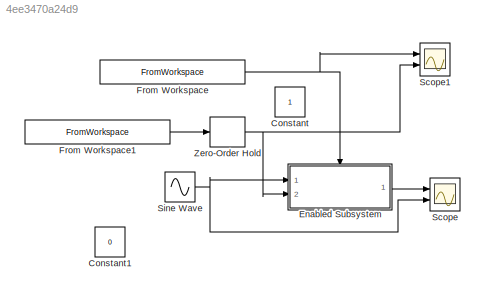
MODEL slx_4ee3470a24d9
KIND model
CONFIG AbsTol = auto
CONFIG EnableMultiTasking = off
CONFIG FixedStep = auto
CONFIG MaxStep = auto
CONFIG MinStep = auto
CONFIG RelTol = 1e-3
CONFIG SampleTimeConstraint = Unconstrained
CONFIG SolverName = VariableStepAuto
CONFIG StartTime = 0.0
CONFIG StopTime = 100
BLOCK [Constant] Constant
BLOCK [Constant] Constant1
  Value = 0
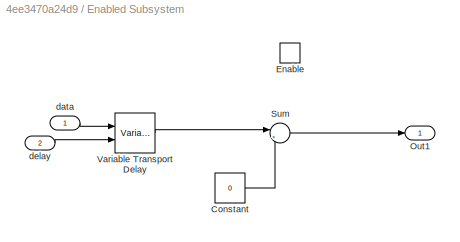
BLOCK [SubSystem] Enabled Subsystem
  Ports = [2, 1, 1]
  RequestExecContextInheritance = off
  TreatAsAtomicUnit = on
BLOCK [Constant] Enabled Subsystem/Constant
  Value = 0
BLOCK [EnablePort] Enabled Subsystem/Enable
  Ports = []
BLOCK [Outport] Enabled Subsystem/Out1
BLOCK [Sum] Enabled Subsystem/Sum
  Inputs = |++
  Ports = [2, 1]
BLOCK [VariableTransportDelay] Enabled Subsystem/Variable Transport Delay
  MaximumDelay = 10
  Ports = [2, 1]
BLOCK [Inport] Enabled Subsystem/data
BLOCK [Inport] Enabled Subsystem/delay
  Port = 2
BLOCK [FromWorkspace] From Workspace
  SampleTime = 1
  VariableName = networkSchedule(:,[1,2])
BLOCK [FromWorkspace] From Workspace1
  SampleTime = 1
  VariableName = networkSchedule(:,[1,3])
BLOCK [Scope] Scope
  Floating = off
  NumInputPorts = 2
  Ports = [2]
  ScopeSpecificationString = Simulink.scopes.TimeScopeBlockCfg('CurrentConfiguration', extmgr.ConfigurationSet(extmgr.Configuration('Core','General UI',true),extmgr.Configuration('Core','Source UI',true),extmgr.Configuration('Sources','WiredSimulink',true),extmgr.Configuration('Visuals','Time Domain',true,'SerializedDisplays',{struct('MinYLimReal','-1.25','MaxYLimReal','1.25','YLabelReal','','MinYLimMag','0.00000','MaxYLimMag...<+1821ch>
BLOCK [Scope] Scope1
  Floating = off
  NumInputPorts = 2
  Ports = [2]
  ScopeSpecificationString = Simulink.scopes.TimeScopeBlockCfg('CurrentConfiguration', extmgr.ConfigurationSet(extmgr.Configuration('Core','General UI',true),extmgr.Configuration('Core','Source UI',true),extmgr.Configuration('Sources','WiredSimulink',true,'DataLoggingVariableName','ScopeData1'),extmgr.Configuration('Visuals','Time Domain',true,'SerializedDisplays',{struct('MinYLimReal','-0.125','MaxYLimReal','1.125','YLabelRe...<+1795ch>
BLOCK [Sin] Sine Wave
  Ports = [0, 1]
  SampleTime = 1
  Samples = 20
  SineType = Sample based
BLOCK [ZeroOrderHold] Zero-Order Hold
  SampleTime = 0.001
LINE Enabled Subsystem/Constant:1 -> Enabled Subsystem/Sum:2
LINE Enabled Subsystem/Sum:1 -> Enabled Subsystem/Out1:1
LINE Enabled Subsystem/Variable Transport Delay:1 -> Enabled Subsystem/Sum:1
LINE Enabled Subsystem/data:1 -> Enabled Subsystem/Variable Transport Delay:1
LINE Enabled Subsystem/delay:1 -> Enabled Subsystem/Variable Transport Delay:2
LINE Enabled Subsystem:1 -> Scope:1
LINE From Workspace1:1 -> Zero-Order Hold:1
NET From Workspace:1 -> Enabled Subsystem:enable, Scope1:1
NET Sine Wave:1 -> Enabled Subsystem:1, Scope:2
NET Zero-Order Hold:1 -> Enabled Subsystem:2, Scope1:2
note: NET lines group one-source signal fan-out (src -> all destinations, sorted); 1:1 wires keep LINE
